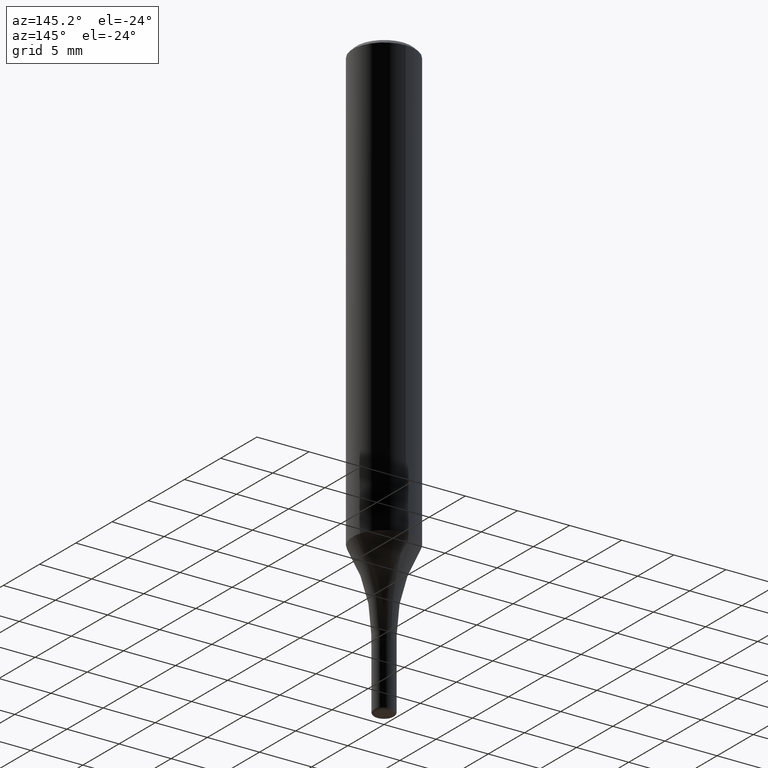
[diagram: clean part render]
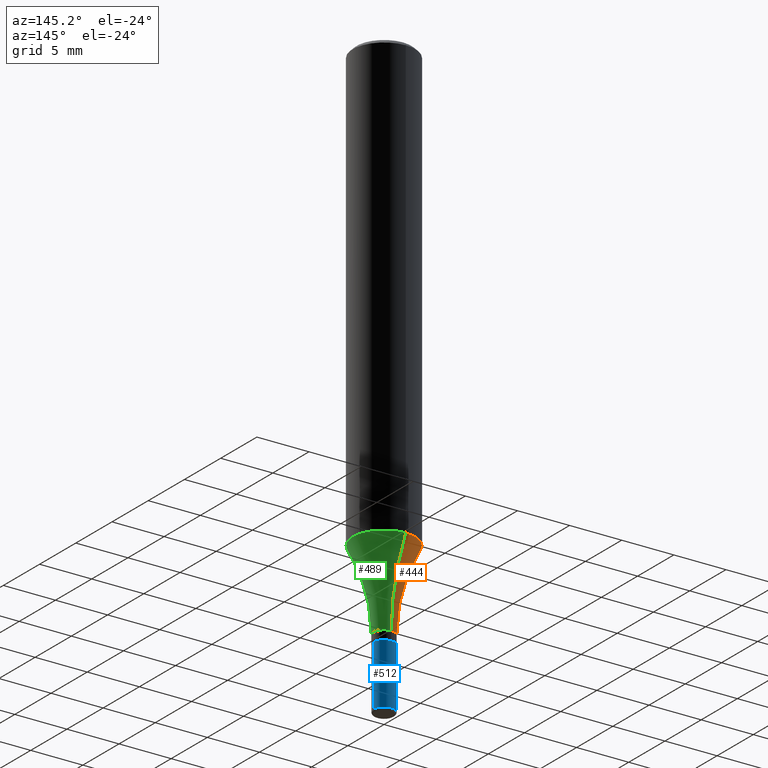
[diagram: same view with three faces highlighted in distinct colors, each labeled with its STEP entity id]
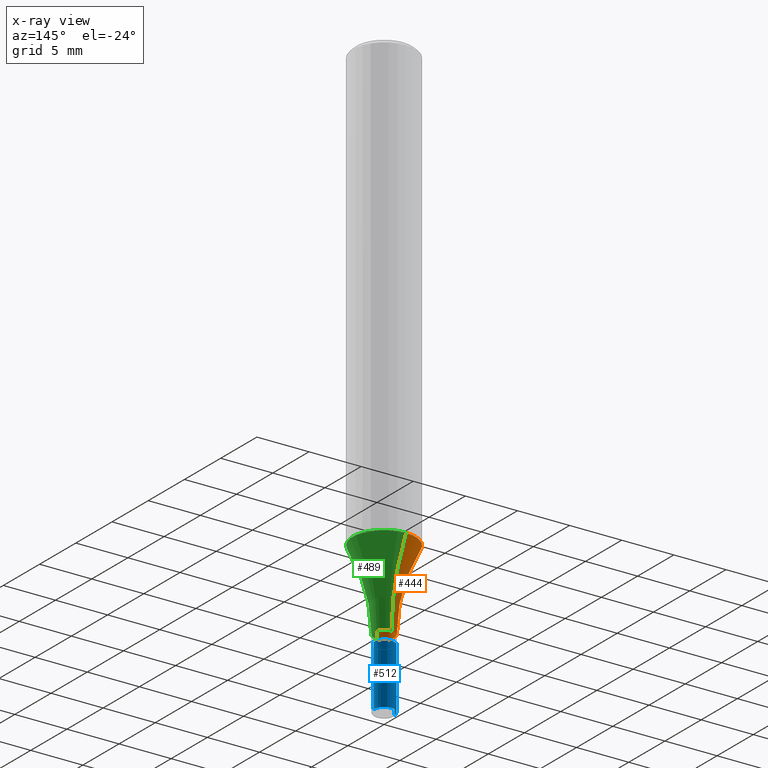
[diagram: x-ray of the same camera — body ghosted, the three highlighted faces saturated]
A machine part, auxiliary view with three faces highlighted in distinct colors.
The next image is the same camera in x-ray (body ghosted, the three faces saturated) — at least one of them is partly hidden behind the body in this view.
Their STEP definitions:

[orange] entity #444 — the highlighted toroidal blend (fillet) surface has major radius 16.8745 mm and minor (blend) radius 15.875 mm.
#37 = DIRECTION ( 'NONE',  ( -1.000000000000000000, 6.982962677686265922E-15, -4.883557194083112340E-29 ) ) ;
#38 = DIRECTION ( 'NONE',  ( -6.982962677686265922E-15, -1.000000000000000000, 6.942434545525431313E-15 ) ) ;
#48 = VERTEX_POINT ( 'NONE', #359 ) ;
#61 = FACE_OUTER_BOUND ( 'NONE', #191, .T. ) ;
#66 = CIRCLE ( 'NONE', #486, 0.6249999999999998890 ) ;
#80 = AXIS2_PLACEMENT_3D ( 'NONE', #238, #37, #356 ) ;
#85 = DIRECTION ( 'NONE',  ( -2.445139223324277623E-29, 3.491953320258587093E-15, 1.000000000000000000 ) ) ;
#96 = CARTESIAN_POINT ( 'NONE',  ( 4.084351511197792915E-29, -5.832945905321489413E-15, -1.670396299824977726 ) ) ;
#101 = DIRECTION ( 'NONE',  ( -6.982962677686265922E-15, -1.000000000000000000, 4.626330217890367758E-15 ) ) ;
#102 = VERTEX_POINT ( 'NONE', #508 ) ;
#158 = CIRCLE ( 'NONE', #163, 0.1181000000000000383 ) ;
#163 = AXIS2_PLACEMENT_3D ( 'NONE', #96, #279, #101 ) ;
#169 = DIRECTION ( 'NONE',  ( -2.445139223324277623E-29, 3.491953320258587093E-15, 1.000000000000000000 ) ) ;
#172 = VERTEX_POINT ( 'NONE', #390 ) ;
#191 = EDGE_LOOP ( 'NONE', ( #222, #517, #502, #378 ) ) ;
#204 = EDGE_CURVE ( 'NONE', #102, #172, #300, .T. ) ;
#222 = ORIENTED_EDGE ( 'NONE', *, *, #320, .F. ) ;
#226 = EDGE_CURVE ( 'NONE', #372, #172, #461, .T. ) ;
#238 = CARTESIAN_POINT ( 'NONE',  ( -4.639131254920823490E-15, -0.6643500000000069905, -1.974099999999997967 ) ) ;
#256 = AXIS2_PLACEMENT_3D ( 'NONE', #401, #169, #501 ) ;
#279 = DIRECTION ( 'NONE',  ( -2.445139223324277623E-29, 3.491953320258587093E-15, 1.000000000000000000 ) ) ;
#297 = DIRECTION ( 'NONE',  ( 7.105427357601003436E-15, 1.000000000000000000, 0.000000000000000000 ) ) ;
#300 = CIRCLE ( 'NONE', #80, 0.6249999999999998890 ) ;
#314 = CARTESIAN_POINT ( 'NONE',  ( 4.826949340764456614E-29, -6.893465049522477722E-15, -1.974100000000000188 ) ) ;
#320 = EDGE_CURVE ( 'NONE', #48, #102, #158, .T. ) ;
#356 = DIRECTION ( 'NONE',  ( -6.982962677686266711E-15, -1.000000000000000000, 0.000000000000000000 ) ) ;
#359 = CARTESIAN_POINT ( 'NONE',  ( 8.391509709327193165E-16, 0.1180999999999942096, -1.670396299824978170 ) ) ;
#372 = VERTEX_POINT ( 'NONE', #408 ) ;
#378 = ORIENTED_EDGE ( 'NONE', *, *, #204, .F. ) ;
#379 = AXIS2_PLACEMENT_3D ( 'NONE', #314, #85, #38 ) ;
#390 = CARTESIAN_POINT ( 'NONE',  ( -2.747795813669068457E-16, -0.03935000000000697662, -1.974099999999999744 ) ) ;
#401 = CARTESIAN_POINT ( 'NONE',  ( 4.827599970290078633E-29, -6.892533311010254125E-15, -1.974100000000000188 ) ) ;
#408 = CARTESIAN_POINT ( 'NONE',  ( 5.593747687271835641E-16, 0.03934999999999319598, -1.974100000000000410 ) ) ;
#431 = EDGE_CURVE ( 'NONE', #48, #372, #66, .T. ) ;
#444 = ADVANCED_FACE ( 'NONE', ( #61 ), #505, .F. ) ;
#461 = CIRCLE ( 'NONE', #379, 0.03935000000000008630 ) ;
#486 = AXIS2_PLACEMENT_3D ( 'NONE', #506, #497, #297 ) ;
#497 = DIRECTION ( 'NONE',  ( 1.000000000000000000, -7.105427357601001070E-15, 4.926321288647378810E-29 ) ) ;
#501 = DIRECTION ( 'NONE',  ( -6.982962677686265133E-15, -1.000000000000000000, 3.491953320258587093E-15 ) ) ;
#502 = ORIENTED_EDGE ( 'NONE', *, *, #226, .T. ) ;
#505 = TOROIDAL_SURFACE ( 'NONE', #256, 0.6643500000000001071, 0.6250000000000000000 ) ;
#506 = CARTESIAN_POINT ( 'NONE',  ( 4.720490665022273678E-15, 0.6643499999999933348, -1.974100000000002408 ) ) ;
#508 = CARTESIAN_POINT ( 'NONE',  ( -8.246878922347075377E-16, -0.1181000000000058253, -1.670396299824977282 ) ) ;
#517 = ORIENTED_EDGE ( 'NONE', *, *, #431, .T. ) ;

[blue] entity #512 — the highlighted cylindrical surface (edge-blend (fillet) strip) has radius 0.9995 mm, axis along (-0, 0, 1).
#15 = LINE ( 'NONE', #173, #375 ) ;
#46 = CARTESIAN_POINT ( 'NONE',  ( 0.000000000000000000, 0.000000000000000000, 0.000000000000000000 ) ) ;
#52 = DIRECTION ( 'NONE',  ( 1.000000000000000000, -6.982962677686269077E-15, 0.000000000000000000 ) ) ;
#53 = ORIENTED_EDGE ( 'NONE', *, *, #342, .F. ) ;
#59 = AXIS2_PLACEMENT_3D ( 'NONE', #402, #134, #52 ) ;
#63 = DIRECTION ( 'NONE',  ( -2.445468806185136877E-29, 3.491481338843145188E-15, 1.000000000000000000 ) ) ;
#69 = CARTESIAN_POINT ( 'NONE',  ( 5.468312797510584412E-29, -7.807301421787156705E-15, -2.236099999999999977 ) ) ;
#83 = CARTESIAN_POINT ( 'NONE',  ( -0.03935000000000015569, -7.129324834503553629E-15, -2.236099999999999977 ) ) ;
#95 = EDGE_CURVE ( 'NONE', #306, #282, #459, .T. ) ;
#134 = DIRECTION ( 'NONE',  ( -2.445468806185136597E-29, 3.491481338843145583E-15, 1.000000000000000000 ) ) ;
#143 = AXIS2_PLACEMENT_3D ( 'NONE', #69, #469, #235 ) ;
#145 = EDGE_LOOP ( 'NONE', ( #157, #396, #216, #53 ) ) ;
#156 = CARTESIAN_POINT ( 'NONE',  ( 0.03935000000000015569, -8.082081003154113199E-15, -2.236099999999999977 ) ) ;
#157 = ORIENTED_EDGE ( 'NONE', *, *, #287, .T. ) ;
#173 = CARTESIAN_POINT ( 'NONE',  ( 0.03935000000000007936, -2.747795813669551634E-16, 1.918775561275704577E-30 ) ) ;
#213 = VERTEX_POINT ( 'NONE', #156 ) ;
#216 = ORIENTED_EDGE ( 'NONE', *, *, #332, .F. ) ;
#221 = CARTESIAN_POINT ( 'NONE',  ( 0.03935000000000000303, -7.285324961630105839E-15, -2.007899999999999796 ) ) ;
#223 = DIRECTION ( 'NONE',  ( -2.445468806185136597E-29, 3.491481338843145583E-15, 1.000000000000000000 ) ) ;
#235 = DIRECTION ( 'NONE',  ( 1.000000000000000000, -6.982962677686267499E-15, 0.000000000000000000 ) ) ;
#282 = VERTEX_POINT ( 'NONE', #426 ) ;
#287 = EDGE_CURVE ( 'NONE', #213, #306, #429, .T. ) ;
#306 = VERTEX_POINT ( 'NONE', #83 ) ;
#328 = DIRECTION ( 'NONE',  ( -2.445468806185136877E-29, 3.491481338843145188E-15, 1.000000000000000000 ) ) ;
#332 = EDGE_CURVE ( 'NONE', #479, #282, #457, .T. ) ;
#333 = DIRECTION ( 'NONE',  ( 1.000000000000000000, -6.982962677686266711E-15, 4.876176775795935793E-29 ) ) ;
#334 = CARTESIAN_POINT ( 'NONE',  ( -0.03935000000000007936, 2.795985665215999870E-16, -1.935600958015309145E-30 ) ) ;
#336 = FACE_OUTER_BOUND ( 'NONE', #145, .T. ) ;
#342 = EDGE_CURVE ( 'NONE', #213, #479, #15, .T. ) ;
#355 = AXIS2_PLACEMENT_3D ( 'NONE', #46, #223, #333 ) ;
#375 = VECTOR ( 'NONE', #328, 39.37007874015748143 ) ;
#396 = ORIENTED_EDGE ( 'NONE', *, *, #95, .T. ) ;
#402 = CARTESIAN_POINT ( 'NONE',  ( 4.910256815939135870E-29, -7.010545380263151710E-15, -2.007899999999999796 ) ) ;
#413 = VECTOR ( 'NONE', #63, 39.37007874015748143 ) ;
#426 = CARTESIAN_POINT ( 'NONE',  ( -0.03935000000000000303, -7.129324834503555207E-15, -2.007899999999999796 ) ) ;
#429 = CIRCLE ( 'NONE', #143, 0.03935000000000015569 ) ;
#450 = CYLINDRICAL_SURFACE ( 'NONE', #355, 0.03935000000000007936 ) ;
#457 = CIRCLE ( 'NONE', #59, 0.03935000000000000303 ) ;
#459 = LINE ( 'NONE', #334, #413 ) ;
#469 = DIRECTION ( 'NONE',  ( -2.445468806185136597E-29, 3.491481338843145583E-15, 1.000000000000000000 ) ) ;
#479 = VERTEX_POINT ( 'NONE', #221 ) ;
#512 = ADVANCED_FACE ( 'NONE', ( #336 ), #450, .T. ) ;

[green] entity #489 — the highlighted toroidal blend (fillet) surface has major radius 16.8745 mm and minor (blend) radius 15.875 mm.
#20 = CARTESIAN_POINT ( 'NONE',  ( 4.827599970290078633E-29, -6.892533311010254125E-15, -1.974100000000000188 ) ) ;
#37 = DIRECTION ( 'NONE',  ( -1.000000000000000000, 6.982962677686265922E-15, -4.883557194083112340E-29 ) ) ;
#40 = DIRECTION ( 'NONE',  ( -2.445139223324277623E-29, 3.491953320258587093E-15, 1.000000000000000000 ) ) ;
#48 = VERTEX_POINT ( 'NONE', #359 ) ;
#66 = CIRCLE ( 'NONE', #486, 0.6249999999999998890 ) ;
#77 = CIRCLE ( 'NONE', #438, 0.1181000000000000383 ) ;
#79 = ORIENTED_EDGE ( 'NONE', *, *, #166, .T. ) ;
#80 = AXIS2_PLACEMENT_3D ( 'NONE', #238, #37, #356 ) ;
#84 = AXIS2_PLACEMENT_3D ( 'NONE', #20, #176, #293 ) ;
#102 = VERTEX_POINT ( 'NONE', #508 ) ;
#119 = TOROIDAL_SURFACE ( 'NONE', #84, 0.6643500000000001071, 0.6250000000000000000 ) ;
#159 = EDGE_CURVE ( 'NONE', #102, #48, #77, .T. ) ;
#166 = EDGE_CURVE ( 'NONE', #172, #372, #468, .T. ) ;
#172 = VERTEX_POINT ( 'NONE', #390 ) ;
#176 = DIRECTION ( 'NONE',  ( -2.445139223324277623E-29, 3.491953320258587093E-15, 1.000000000000000000 ) ) ;
#178 = EDGE_LOOP ( 'NONE', ( #491, #281, #227, #79 ) ) ;
#204 = EDGE_CURVE ( 'NONE', #102, #172, #300, .T. ) ;
#227 = ORIENTED_EDGE ( 'NONE', *, *, #204, .T. ) ;
#238 = CARTESIAN_POINT ( 'NONE',  ( -4.639131254920823490E-15, -0.6643500000000069905, -1.974099999999997967 ) ) ;
#260 = FACE_OUTER_BOUND ( 'NONE', #178, .T. ) ;
#280 = CARTESIAN_POINT ( 'NONE',  ( 4.084351511197792915E-29, -5.832945905321489413E-15, -1.670396299824977726 ) ) ;
#281 = ORIENTED_EDGE ( 'NONE', *, *, #159, .F. ) ;
#293 = DIRECTION ( 'NONE',  ( -6.982962677686265133E-15, -1.000000000000000000, 3.491953320258587093E-15 ) ) ;
#297 = DIRECTION ( 'NONE',  ( 7.105427357601003436E-15, 1.000000000000000000, 0.000000000000000000 ) ) ;
#300 = CIRCLE ( 'NONE', #80, 0.6249999999999998890 ) ;
#322 = AXIS2_PLACEMENT_3D ( 'NONE', #481, #488, #424 ) ;
#356 = DIRECTION ( 'NONE',  ( -6.982962677686266711E-15, -1.000000000000000000, 0.000000000000000000 ) ) ;
#359 = CARTESIAN_POINT ( 'NONE',  ( 8.391509709327193165E-16, 0.1180999999999942096, -1.670396299824978170 ) ) ;
#372 = VERTEX_POINT ( 'NONE', #408 ) ;
#390 = CARTESIAN_POINT ( 'NONE',  ( -2.747795813669068457E-16, -0.03935000000000697662, -1.974099999999999744 ) ) ;
#408 = CARTESIAN_POINT ( 'NONE',  ( 5.593747687271835641E-16, 0.03934999999999319598, -1.974100000000000410 ) ) ;
#424 = DIRECTION ( 'NONE',  ( -6.982962677686265922E-15, -1.000000000000000000, 6.942434545525431313E-15 ) ) ;
#431 = EDGE_CURVE ( 'NONE', #48, #372, #66, .T. ) ;
#438 = AXIS2_PLACEMENT_3D ( 'NONE', #280, #40, #484 ) ;
#468 = CIRCLE ( 'NONE', #322, 0.03935000000000008630 ) ;
#481 = CARTESIAN_POINT ( 'NONE',  ( 4.826949340764456614E-29, -6.893465049522477722E-15, -1.974100000000000188 ) ) ;
#484 = DIRECTION ( 'NONE',  ( -6.982962677686265922E-15, -1.000000000000000000, 4.626330217890367758E-15 ) ) ;
#486 = AXIS2_PLACEMENT_3D ( 'NONE', #506, #497, #297 ) ;
#488 = DIRECTION ( 'NONE',  ( -2.445139223324277623E-29, 3.491953320258587093E-15, 1.000000000000000000 ) ) ;
#489 = ADVANCED_FACE ( 'NONE', ( #260 ), #119, .F. ) ;
#491 = ORIENTED_EDGE ( 'NONE', *, *, #431, .F. ) ;
#497 = DIRECTION ( 'NONE',  ( 1.000000000000000000, -7.105427357601001070E-15, 4.926321288647378810E-29 ) ) ;
#506 = CARTESIAN_POINT ( 'NONE',  ( 4.720490665022273678E-15, 0.6643499999999933348, -1.974100000000002408 ) ) ;
#508 = CARTESIAN_POINT ( 'NONE',  ( -8.246878922347075377E-16, -0.1181000000000058253, -1.670396299824977282 ) ) ;